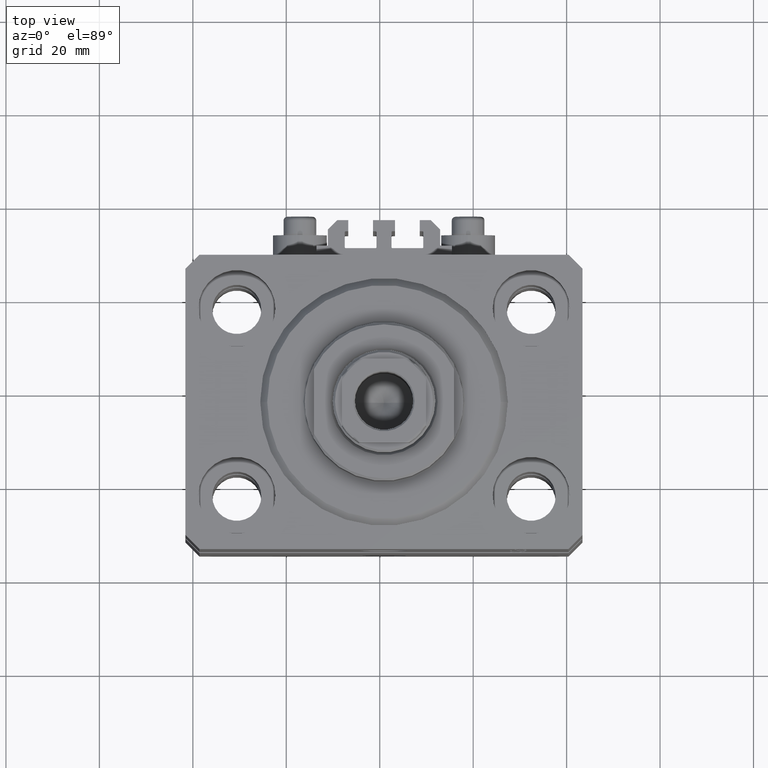
[diagram: clean part render]
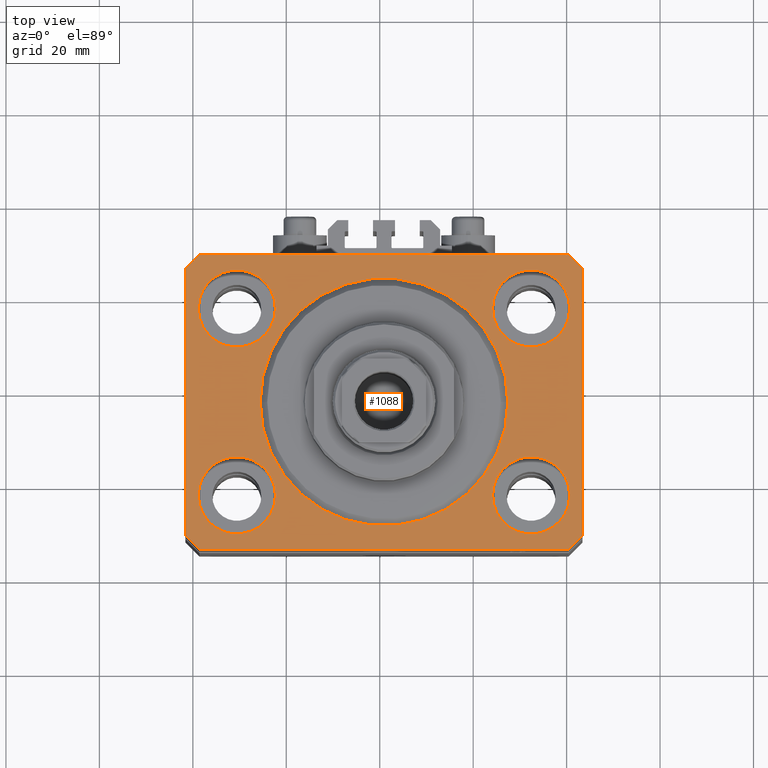
[diagram: same view with one face highlighted and labeled with its STEP entity id]
A machine part, top view. The second image highlights one B-rep face of the part: STEP entity #1088.
In plain terms, the highlighted planar face has unit normal (0, 0, 1).
Its self-contained STEP definition (entity closure, byte-faithful):
#509 = EDGE_CURVE ( 'NONE', #940, #22766, #24939, .T. ) ;
#940 = VERTEX_POINT ( 'NONE', #38140 ) ;
#976 = CIRCLE ( 'NONE', #14025, 8.249999999999992895 ) ;
#1088 = ADVANCED_FACE ( 'NONE', ( #13378, #2789, #21532, #43422, #6152, #42944 ), #2550, .T. ) ;
#1155 = DIRECTION ( 'NONE',  ( 0.7071067811865483499, 0.7071067811865466846, 0.000000000000000000 ) ) ;
#1754 = AXIS2_PLACEMENT_3D ( 'NONE', #20039, #16431, #31084 ) ;
#1828 = CARTESIAN_POINT ( 'NONE',  ( 23.25000000000000355, 20.00000000000001066, 0.000000000000000000 ) ) ;
#2258 = CARTESIAN_POINT ( 'NONE',  ( 31.50000000000000000, -20.00000000000000000, 0.000000000000000000 ) ) ;
#2329 = EDGE_CURVE ( 'NONE', #22766, #940, #4286, .T. ) ;
#2489 = VERTEX_POINT ( 'NONE', #38571 ) ;
#2550 = PLANE ( 'NONE',  #39567 ) ;
#2624 = VERTEX_POINT ( 'NONE', #30745 ) ;
#2783 = CARTESIAN_POINT ( 'NONE',  ( -39.50000000000000711, -31.50000000000000000, 0.000000000000000000 ) ) ;
#2789 = FACE_BOUND ( 'NONE', #22898, .T. ) ;
#3072 = EDGE_CURVE ( 'NONE', #17129, #46948, #42003, .T. ) ;
#3309 = LINE ( 'NONE', #35993, #15233 ) ;
#4286 = CIRCLE ( 'NONE', #28862, 8.250000000000000000 ) ;
#4336 = DIRECTION ( 'NONE',  ( 0.000000000000000000, 0.000000000000000000, 1.000000000000000000 ) ) ;
#5469 = CIRCLE ( 'NONE', #13160, 8.249999999999992895 ) ;
#5790 = LINE ( 'NONE', #34871, #28466 ) ;
#6152 = FACE_BOUND ( 'NONE', #13297, .T. ) ;
#6393 = DIRECTION ( 'NONE',  ( 0.000000000000000000, 0.000000000000000000, 1.000000000000000000 ) ) ;
#6486 = ORIENTED_EDGE ( 'NONE', *, *, #2329, .F. ) ;
#6631 = LINE ( 'NONE', #2783, #13044 ) ;
#6893 = CARTESIAN_POINT ( 'NONE',  ( 42.50000000000051870, 28.49999999999995381, 0.000000000000000000 ) ) ;
#6950 = CARTESIAN_POINT ( 'NONE',  ( -23.25000000000000000, 20.00000000000000000, 0.000000000000000000 ) ) ;
#7283 = AXIS2_PLACEMENT_3D ( 'NONE', #26657, #40871, #23058 ) ;
#7310 = CARTESIAN_POINT ( 'NONE',  ( 42.50000000000000711, -28.50000000000000355, 0.000000000000000000 ) ) ;
#7386 = ORIENTED_EDGE ( 'NONE', *, *, #11808, .T. ) ;
#7924 = ORIENTED_EDGE ( 'NONE', *, *, #42030, .F. ) ;
#8114 = DIRECTION ( 'NONE',  ( 0.000000000000000000, 0.000000000000000000, 1.000000000000000000 ) ) ;
#8129 = DIRECTION ( 'NONE',  ( -1.000000000000000000, 0.000000000000000000, 0.000000000000000000 ) ) ;
#8497 = ORIENTED_EDGE ( 'NONE', *, *, #42941, .F. ) ;
#8608 = CIRCLE ( 'NONE', #27142, 26.50000000000000355 ) ;
#8675 = ORIENTED_EDGE ( 'NONE', *, *, #12278, .T. ) ;
#9586 = CARTESIAN_POINT ( 'NONE',  ( -42.50000000000000000, -28.50000000000000000, 0.000000000000000000 ) ) ;
#9686 = VERTEX_POINT ( 'NONE', #9586 ) ;
#9888 = EDGE_CURVE ( 'NONE', #47261, #16915, #46644, .T. ) ;
#9913 = CARTESIAN_POINT ( 'NONE',  ( 42.50000000000000711, -28.50000000000000355, 0.000000000000000000 ) ) ;
#9973 = CIRCLE ( 'NONE', #32235, 8.249999999999992895 ) ;
#10241 = DIRECTION ( 'NONE',  ( 1.000000000000000000, 0.000000000000000000, 0.000000000000000000 ) ) ;
#10352 = ORIENTED_EDGE ( 'NONE', *, *, #3072, .T. ) ;
#10482 = DIRECTION ( 'NONE',  ( 0.000000000000000000, 0.000000000000000000, 1.000000000000000000 ) ) ;
#10566 = AXIS2_PLACEMENT_3D ( 'NONE', #2258, #39030, #32283 ) ;
#10880 = VECTOR ( 'NONE', #18134, 1000.000000000000000 ) ;
#11180 = VERTEX_POINT ( 'NONE', #9913 ) ;
#11532 = EDGE_LOOP ( 'NONE', ( #6486, #44692 ) ) ;
#11808 = EDGE_CURVE ( 'NONE', #9686, #2489, #3309, .T. ) ;
#12032 = VERTEX_POINT ( 'NONE', #1828 ) ;
#12226 = CARTESIAN_POINT ( 'NONE',  ( 39.50000000000000711, -31.50000000000000000, 0.000000000000000000 ) ) ;
#12278 = EDGE_CURVE ( 'NONE', #15024, #11180, #34086, .T. ) ;
#12442 = DIRECTION ( 'NONE',  ( 1.000000000000000000, 0.000000000000000000, 0.000000000000000000 ) ) ;
#12455 = VECTOR ( 'NONE', #8129, 1000.000000000000000 ) ;
#12734 = CARTESIAN_POINT ( 'NONE',  ( -31.50000000000000000, -20.00000000000000000, 0.000000000000000000 ) ) ;
#12774 = DIRECTION ( 'NONE',  ( 0.000000000000000000, -1.000000000000000000, 0.000000000000000000 ) ) ;
#13029 = VECTOR ( 'NONE', #40306, 1000.000000000000114 ) ;
#13044 = VECTOR ( 'NONE', #10241, 1000.000000000000000 ) ;
#13160 = AXIS2_PLACEMENT_3D ( 'NONE', #46107, #27569, #12442 ) ;
#13297 = EDGE_LOOP ( 'NONE', ( #7924, #21082 ) ) ;
#13378 = FACE_BOUND ( 'NONE', #43266, .T. ) ;
#13406 = DIRECTION ( 'NONE',  ( 0.000000000000000000, 0.000000000000000000, 1.000000000000000000 ) ) ;
#13411 = ORIENTED_EDGE ( 'NONE', *, *, #28817, .T. ) ;
#14025 = AXIS2_PLACEMENT_3D ( 'NONE', #37686, #8114, #30460 ) ;
#15024 = VERTEX_POINT ( 'NONE', #22761 ) ;
#15098 = DIRECTION ( 'NONE',  ( 0.000000000000000000, 0.000000000000000000, 1.000000000000000000 ) ) ;
#15233 = VECTOR ( 'NONE', #32616, 1000.000000000000000 ) ;
#16263 = EDGE_CURVE ( 'NONE', #2489, #15024, #6631, .T. ) ;
#16431 = DIRECTION ( 'NONE',  ( 0.000000000000000000, 0.000000000000000000, 1.000000000000000000 ) ) ;
#16915 = VERTEX_POINT ( 'NONE', #43248 ) ;
#17129 = VERTEX_POINT ( 'NONE', #17459 ) ;
#17332 = EDGE_CURVE ( 'NONE', #12032, #45174, #9973, .T. ) ;
#17459 = CARTESIAN_POINT ( 'NONE',  ( -39.50000000000000711, 31.50000000000000000, 0.000000000000000000 ) ) ;
#17663 = ORIENTED_EDGE ( 'NONE', *, *, #41865, .T. ) ;
#18134 = DIRECTION ( 'NONE',  ( 8.886653596232072440E-15, 1.000000000000000000, 0.000000000000000000 ) ) ;
#18195 = LINE ( 'NONE', #6893, #13029 ) ;
#19088 = EDGE_CURVE ( 'NONE', #46948, #9686, #5790, .T. ) ;
#19509 = ORIENTED_EDGE ( 'NONE', *, *, #17332, .F. ) ;
#20039 = CARTESIAN_POINT ( 'NONE',  ( -31.50000000000000000, -20.00000000000000000, 0.000000000000000000 ) ) ;
#20886 = EDGE_CURVE ( 'NONE', #27180, #47001, #43023, .T. ) ;
#21082 = ORIENTED_EDGE ( 'NONE', *, *, #35530, .F. ) ;
#21363 = VECTOR ( 'NONE', #1155, 1000.000000000000000 ) ;
#21532 = FACE_BOUND ( 'NONE', #24578, .T. ) ;
#22014 = CARTESIAN_POINT ( 'NONE',  ( 39.74999999999999289, 20.00000000000001066, 0.000000000000000000 ) ) ;
#22214 = LINE ( 'NONE', #7310, #10880 ) ;
#22761 = CARTESIAN_POINT ( 'NONE',  ( 39.50000000000000711, -31.50000000000000000, 0.000000000000000000 ) ) ;
#22766 = VERTEX_POINT ( 'NONE', #6950 ) ;
#22898 = EDGE_LOOP ( 'NONE', ( #27453, #23996 ) ) ;
#23039 = EDGE_CURVE ( 'NONE', #11180, #29382, #22214, .T. ) ;
#23058 = DIRECTION ( 'NONE',  ( 1.000000000000000000, 0.000000000000000000, 0.000000000000000000 ) ) ;
#23395 = VERTEX_POINT ( 'NONE', #32015 ) ;
#23996 = ORIENTED_EDGE ( 'NONE', *, *, #26330, .F. ) ;
#24578 = EDGE_LOOP ( 'NONE', ( #35476, #19509 ) ) ;
#24900 = DIRECTION ( 'NONE',  ( 1.000000000000000000, 0.000000000000000000, -0.000000000000000000 ) ) ;
#24939 = CIRCLE ( 'NONE', #7283, 8.250000000000000000 ) ;
#26151 = CIRCLE ( 'NONE', #44612, 26.50000000000000355 ) ;
#26217 = ORIENTED_EDGE ( 'NONE', *, *, #16263, .T. ) ;
#26330 = EDGE_CURVE ( 'NONE', #16915, #47261, #976, .T. ) ;
#26657 = CARTESIAN_POINT ( 'NONE',  ( -31.50000000000000000, 20.00000000000000000, 0.000000000000000000 ) ) ;
#27142 = AXIS2_PLACEMENT_3D ( 'NONE', #46834, #13406, #46596 ) ;
#27180 = VERTEX_POINT ( 'NONE', #39469 ) ;
#27271 = DIRECTION ( 'NONE',  ( 1.000000000000000000, 0.000000000000000000, 0.000000000000000000 ) ) ;
#27350 = CARTESIAN_POINT ( 'NONE',  ( 42.50000000000051870, 28.49999999999995381, 0.000000000000000000 ) ) ;
#27453 = ORIENTED_EDGE ( 'NONE', *, *, #9888, .F. ) ;
#27569 = DIRECTION ( 'NONE',  ( 0.000000000000000000, 0.000000000000000000, 1.000000000000000000 ) ) ;
#27801 = DIRECTION ( 'NONE',  ( -0.7071067811865471286, -0.7071067811865479058, 0.000000000000000000 ) ) ;
#27905 = CARTESIAN_POINT ( 'NONE',  ( -39.75000000000000000, -20.00000000000000000, 0.000000000000000000 ) ) ;
#28466 = VECTOR ( 'NONE', #12774, 1000.000000000000000 ) ;
#28817 = EDGE_CURVE ( 'NONE', #29382, #2624, #18195, .T. ) ;
#28862 = AXIS2_PLACEMENT_3D ( 'NONE', #32819, #6393, #47512 ) ;
#29382 = VERTEX_POINT ( 'NONE', #27350 ) ;
#29988 = DIRECTION ( 'NONE',  ( 1.000000000000000000, 0.000000000000000000, 0.000000000000000000 ) ) ;
#30015 = LINE ( 'NONE', #44705, #12455 ) ;
#30282 = DIRECTION ( 'NONE',  ( 1.000000000000000000, 0.000000000000000000, 0.000000000000000000 ) ) ;
#30398 = DIRECTION ( 'NONE',  ( 0.000000000000000000, 0.000000000000000000, 1.000000000000000000 ) ) ;
#30460 = DIRECTION ( 'NONE',  ( 1.000000000000000000, 0.000000000000000000, 0.000000000000000000 ) ) ;
#30745 = CARTESIAN_POINT ( 'NONE',  ( 39.50000000000056843, 31.50000000000000000, 0.000000000000000000 ) ) ;
#30903 = CARTESIAN_POINT ( 'NONE',  ( -26.50000000000000355, 3.245314017740486554E-15, 0.000000000000000000 ) ) ;
#31084 = DIRECTION ( 'NONE',  ( 1.000000000000000000, 0.000000000000000000, 0.000000000000000000 ) ) ;
#32015 = CARTESIAN_POINT ( 'NONE',  ( 26.50000000000000355, 0.000000000000000000, 0.000000000000000000 ) ) ;
#32235 = AXIS2_PLACEMENT_3D ( 'NONE', #38338, #30398, #27271 ) ;
#32283 = DIRECTION ( 'NONE',  ( 1.000000000000000000, 0.000000000000000000, 0.000000000000000000 ) ) ;
#32616 = DIRECTION ( 'NONE',  ( 0.7071067811865471286, -0.7071067811865479058, 0.000000000000000000 ) ) ;
#32715 = ORIENTED_EDGE ( 'NONE', *, *, #20886, .F. ) ;
#32819 = CARTESIAN_POINT ( 'NONE',  ( -31.50000000000000000, 20.00000000000000000, 0.000000000000000000 ) ) ;
#33358 = CARTESIAN_POINT ( 'NONE',  ( 0.000000000000000000, 0.000000000000000000, 0.000000000000000000 ) ) ;
#34086 = LINE ( 'NONE', #12226, #21363 ) ;
#34773 = CARTESIAN_POINT ( 'NONE',  ( -39.50000000000000711, 31.50000000000000000, 0.000000000000000000 ) ) ;
#34871 = CARTESIAN_POINT ( 'NONE',  ( -42.50000000000000000, 28.50000000000000000, 0.000000000000000000 ) ) ;
#34929 = ORIENTED_EDGE ( 'NONE', *, *, #23039, .T. ) ;
#35340 = EDGE_LOOP ( 'NONE', ( #17663, #10352, #44006, #7386, #26217, #8675, #34929, #13411 ) ) ;
#35476 = ORIENTED_EDGE ( 'NONE', *, *, #36534, .F. ) ;
#35530 = EDGE_CURVE ( 'NONE', #42229, #23395, #26151, .T. ) ;
#35993 = CARTESIAN_POINT ( 'NONE',  ( -42.50000000000000000, -28.50000000000000000, 0.000000000000000000 ) ) ;
#36534 = EDGE_CURVE ( 'NONE', #45174, #12032, #5469, .T. ) ;
#37686 = CARTESIAN_POINT ( 'NONE',  ( 31.50000000000000000, -20.00000000000000000, 0.000000000000000000 ) ) ;
#38140 = CARTESIAN_POINT ( 'NONE',  ( -39.75000000000000000, 20.00000000000000000, 0.000000000000000000 ) ) ;
#38338 = CARTESIAN_POINT ( 'NONE',  ( 31.50000000000000000, 20.00000000000001066, 0.000000000000000000 ) ) ;
#38571 = CARTESIAN_POINT ( 'NONE',  ( -39.50000000000000711, -31.50000000000000000, 0.000000000000000000 ) ) ;
#39030 = DIRECTION ( 'NONE',  ( 0.000000000000000000, 0.000000000000000000, 1.000000000000000000 ) ) ;
#39469 = CARTESIAN_POINT ( 'NONE',  ( -23.25000000000000000, -20.00000000000000000, 0.000000000000000000 ) ) ;
#39567 = AXIS2_PLACEMENT_3D ( 'NONE', #46087, #10482, #24900 ) ;
#40306 = DIRECTION ( 'NONE',  ( -0.7071067811865356934, 0.7071067811865594521, 0.000000000000000000 ) ) ;
#40871 = DIRECTION ( 'NONE',  ( 0.000000000000000000, 0.000000000000000000, 1.000000000000000000 ) ) ;
#41865 = EDGE_CURVE ( 'NONE', #2624, #17129, #30015, .T. ) ;
#42003 = LINE ( 'NONE', #34773, #42671 ) ;
#42030 = EDGE_CURVE ( 'NONE', #23395, #42229, #8608, .T. ) ;
#42229 = VERTEX_POINT ( 'NONE', #30903 ) ;
#42525 = CARTESIAN_POINT ( 'NONE',  ( 39.74999999999999289, -20.00000000000000000, 0.000000000000000000 ) ) ;
#42671 = VECTOR ( 'NONE', #27801, 1000.000000000000000 ) ;
#42941 = EDGE_CURVE ( 'NONE', #47001, #27180, #46285, .T. ) ;
#42944 = FACE_OUTER_BOUND ( 'NONE', #35340, .T. ) ;
#43023 = CIRCLE ( 'NONE', #46881, 8.250000000000000000 ) ;
#43248 = CARTESIAN_POINT ( 'NONE',  ( 23.25000000000000355, -20.00000000000000000, 0.000000000000000000 ) ) ;
#43266 = EDGE_LOOP ( 'NONE', ( #32715, #8497 ) ) ;
#43422 = FACE_BOUND ( 'NONE', #11532, .T. ) ;
#44006 = ORIENTED_EDGE ( 'NONE', *, *, #19088, .T. ) ;
#44612 = AXIS2_PLACEMENT_3D ( 'NONE', #33358, #15098, #29988 ) ;
#44692 = ORIENTED_EDGE ( 'NONE', *, *, #509, .F. ) ;
#44705 = CARTESIAN_POINT ( 'NONE',  ( 39.50000000000056843, 31.50000000000000000, 0.000000000000000000 ) ) ;
#45174 = VERTEX_POINT ( 'NONE', #22014 ) ;
#45497 = CARTESIAN_POINT ( 'NONE',  ( -42.50000000000000000, 28.50000000000000000, 0.000000000000000000 ) ) ;
#46087 = CARTESIAN_POINT ( 'NONE',  ( 0.000000000000000000, 0.000000000000000000, 0.000000000000000000 ) ) ;
#46107 = CARTESIAN_POINT ( 'NONE',  ( 31.50000000000000000, 20.00000000000001066, 0.000000000000000000 ) ) ;
#46285 = CIRCLE ( 'NONE', #1754, 8.250000000000000000 ) ;
#46596 = DIRECTION ( 'NONE',  ( 1.000000000000000000, 0.000000000000000000, 0.000000000000000000 ) ) ;
#46644 = CIRCLE ( 'NONE', #10566, 8.249999999999992895 ) ;
#46834 = CARTESIAN_POINT ( 'NONE',  ( 0.000000000000000000, 0.000000000000000000, 0.000000000000000000 ) ) ;
#46881 = AXIS2_PLACEMENT_3D ( 'NONE', #12734, #4336, #30282 ) ;
#46948 = VERTEX_POINT ( 'NONE', #45497 ) ;
#47001 = VERTEX_POINT ( 'NONE', #27905 ) ;
#47261 = VERTEX_POINT ( 'NONE', #42525 ) ;
#47512 = DIRECTION ( 'NONE',  ( 1.000000000000000000, 0.000000000000000000, 0.000000000000000000 ) ) ;